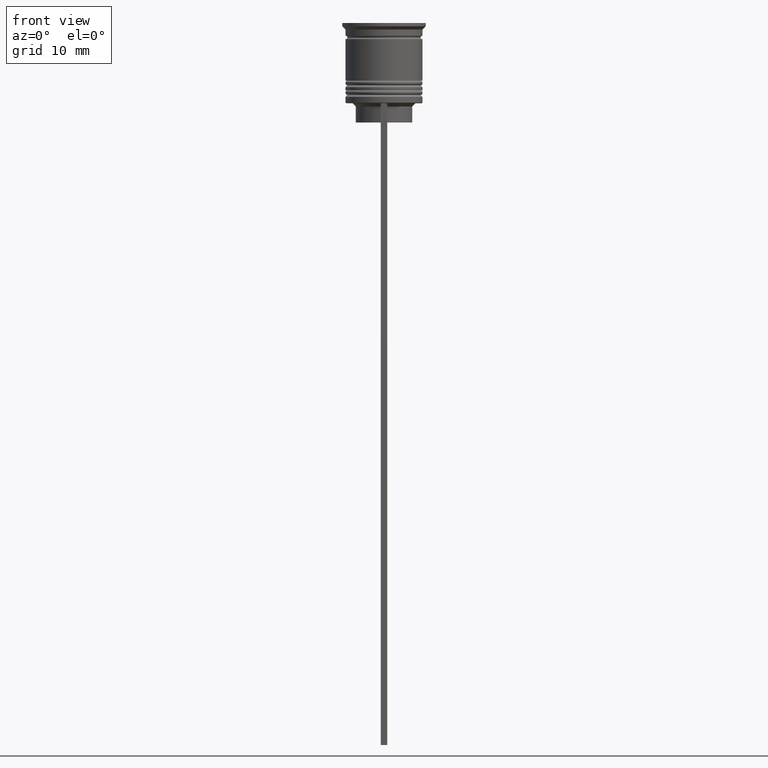
[diagram: clean part render]
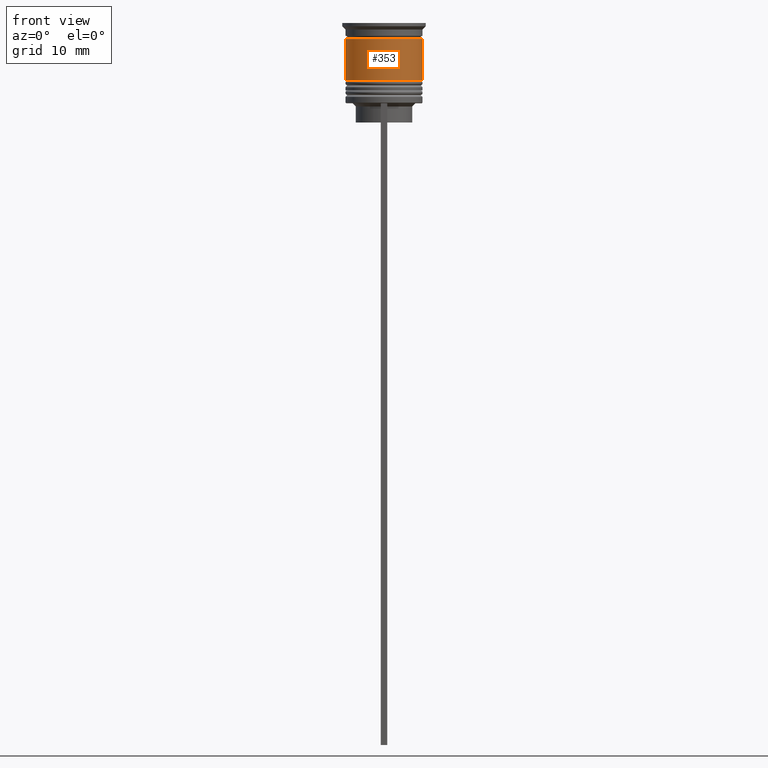
[diagram: same view with one face highlighted and labeled with its STEP entity id]
A machine part, front view. The second image highlights one B-rep face of the part: STEP entity #353.
In plain terms, the highlighted cylindrical surface (partial cylindrical patch) has radius 6 mm, axis along (-0, -0, 1).
Its self-contained STEP definition (entity closure, byte-faithful):
#149 = VERTEX_POINT ( 'NONE', #1234 ) ;
#151 = VERTEX_POINT ( 'NONE', #2456 ) ;
#262 = CARTESIAN_POINT ( 'NONE',  ( -5.999999999999999112, 7.347880794884118750E-16, -2.500000000000000444 ) ) ;
#299 = CIRCLE ( 'NONE', #2221, 5.999999999999999112 ) ;
#320 = VERTEX_POINT ( 'NONE', #2137 ) ;
#353 = ADVANCED_FACE ( 'NONE', ( #762 ), #1689, .T. ) ;
#369 = DIRECTION ( 'NONE',  ( 1.000000000000000000, 0.000000000000000000, 0.000000000000000000 ) ) ;
#505 = EDGE_CURVE ( 'NONE', #149, #151, #654, .T. ) ;
#546 = DIRECTION ( 'NONE',  ( -0.000000000000000000, -0.000000000000000000, 1.000000000000000000 ) ) ;
#654 = LINE ( 'NONE', #1241, #1174 ) ;
#655 = EDGE_CURVE ( 'NONE', #1387, #151, #299, .T. ) ;
#673 = EDGE_CURVE ( 'NONE', #320, #1387, #1685, .T. ) ;
#740 = CARTESIAN_POINT ( 'NONE',  ( 0.000000000000000000, 0.000000000000000000, 0.000000000000000000 ) ) ;
#762 = FACE_OUTER_BOUND ( 'NONE', #1074, .T. ) ;
#832 = DIRECTION ( 'NONE',  ( -0.000000000000000000, -0.000000000000000000, 1.000000000000000000 ) ) ;
#939 = DIRECTION ( 'NONE',  ( -0.000000000000000000, -0.000000000000000000, 1.000000000000000000 ) ) ;
#950 = DIRECTION ( 'NONE',  ( -0.000000000000000000, -0.000000000000000000, 1.000000000000000000 ) ) ;
#1052 = ORIENTED_EDGE ( 'NONE', *, *, #673, .F. ) ;
#1057 = AXIS2_PLACEMENT_3D ( 'NONE', #740, #1520, #369 ) ;
#1074 = EDGE_LOOP ( 'NONE', ( #1052, #1998, #1282, #1253 ) ) ;
#1174 = VECTOR ( 'NONE', #832, 1000.000000000000000 ) ;
#1234 = CARTESIAN_POINT ( 'NONE',  ( 6.000000000000000888, 0.000000000000000000, -9.000000000000001776 ) ) ;
#1241 = CARTESIAN_POINT ( 'NONE',  ( 6.000000000000000000, 0.000000000000000000, 0.000000000000000000 ) ) ;
#1253 = ORIENTED_EDGE ( 'NONE', *, *, #655, .F. ) ;
#1282 = ORIENTED_EDGE ( 'NONE', *, *, #505, .T. ) ;
#1328 = CARTESIAN_POINT ( 'NONE',  ( 0.000000000000000000, 0.000000000000000000, -2.500000000000000444 ) ) ;
#1387 = VERTEX_POINT ( 'NONE', #262 ) ;
#1466 = AXIS2_PLACEMENT_3D ( 'NONE', #2116, #546, #2288 ) ;
#1520 = DIRECTION ( 'NONE',  ( -0.000000000000000000, -0.000000000000000000, 1.000000000000000000 ) ) ;
#1525 = DIRECTION ( 'NONE',  ( 1.000000000000000000, 0.000000000000000000, 0.000000000000000000 ) ) ;
#1685 = LINE ( 'NONE', #2467, #1933 ) ;
#1689 = CYLINDRICAL_SURFACE ( 'NONE', #1057, 6.000000000000000000 ) ;
#1830 = EDGE_CURVE ( 'NONE', #320, #149, #1940, .T. ) ;
#1933 = VECTOR ( 'NONE', #950, 1000.000000000000000 ) ;
#1940 = CIRCLE ( 'NONE', #1466, 6.000000000000000888 ) ;
#1998 = ORIENTED_EDGE ( 'NONE', *, *, #1830, .T. ) ;
#2116 = CARTESIAN_POINT ( 'NONE',  ( 0.000000000000000000, 0.000000000000000000, -9.000000000000001776 ) ) ;
#2137 = CARTESIAN_POINT ( 'NONE',  ( -6.000000000000001776, 7.347880794884121708E-16, -9.000000000000001776 ) ) ;
#2221 = AXIS2_PLACEMENT_3D ( 'NONE', #1328, #939, #1525 ) ;
#2288 = DIRECTION ( 'NONE',  ( 1.000000000000000000, 0.000000000000000000, 0.000000000000000000 ) ) ;
#2456 = CARTESIAN_POINT ( 'NONE',  ( 5.999999999999999112, 0.000000000000000000, -2.500000000000000444 ) ) ;
#2467 = CARTESIAN_POINT ( 'NONE',  ( -6.000000000000000000, 7.347880794884119736E-16, 0.000000000000000000 ) ) ;